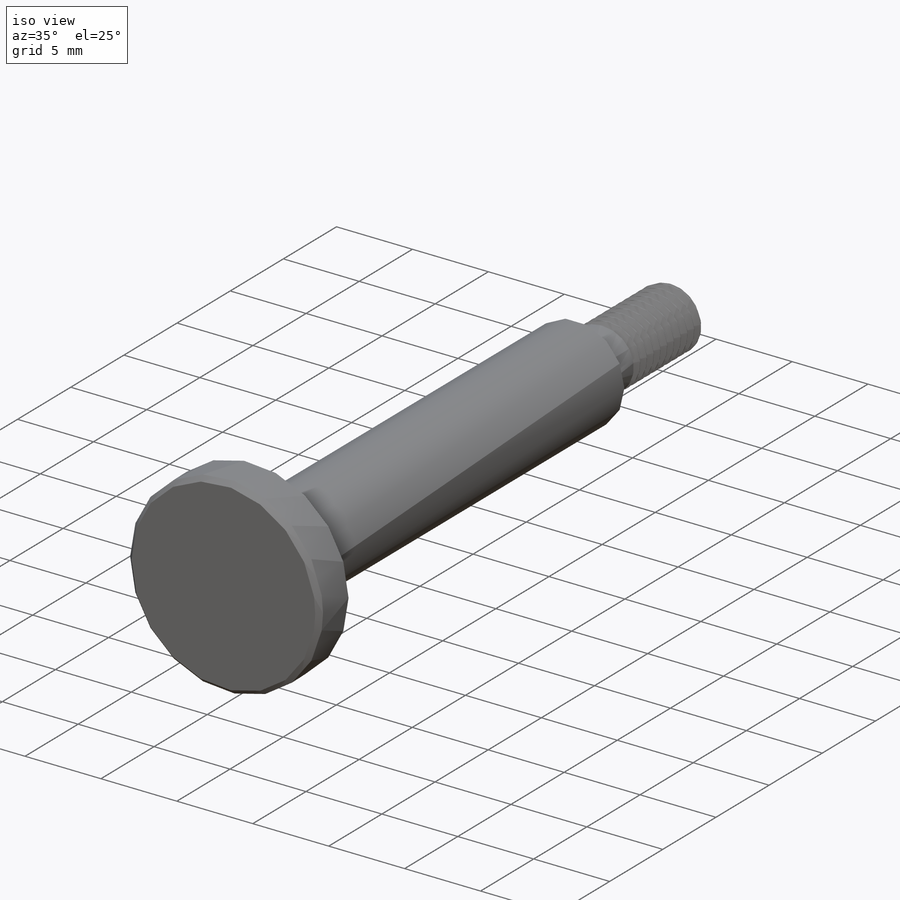
[diagram: iso view]
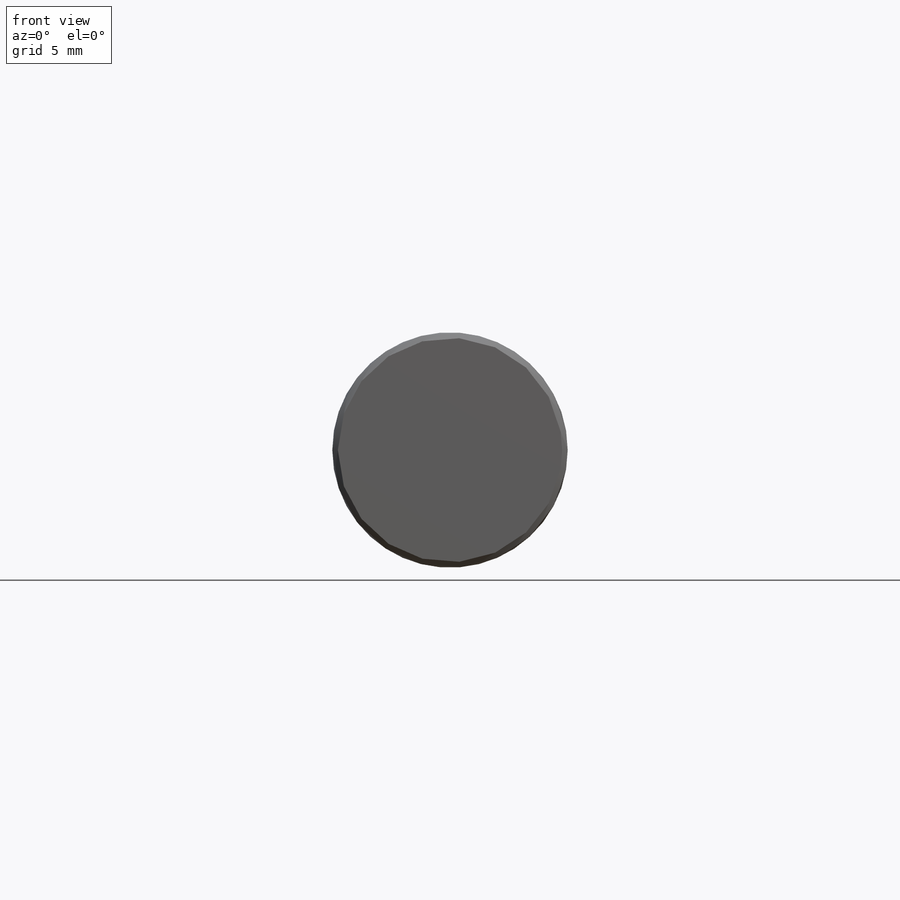
[diagram: front view]
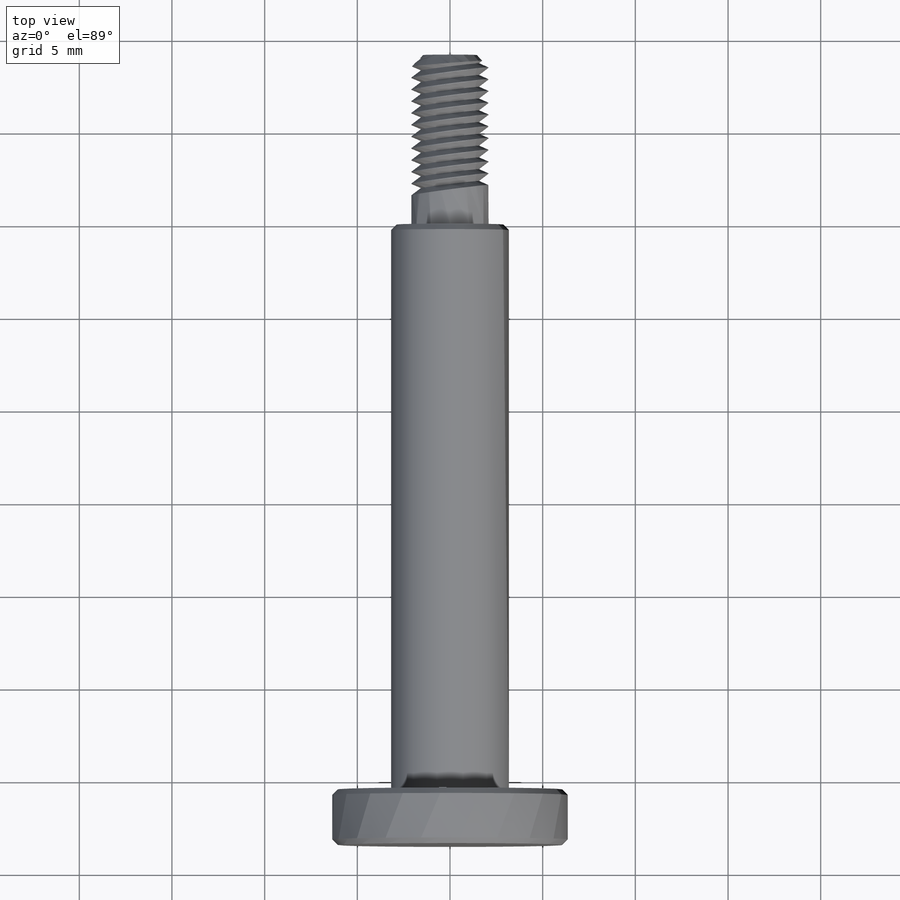
[diagram: top view]
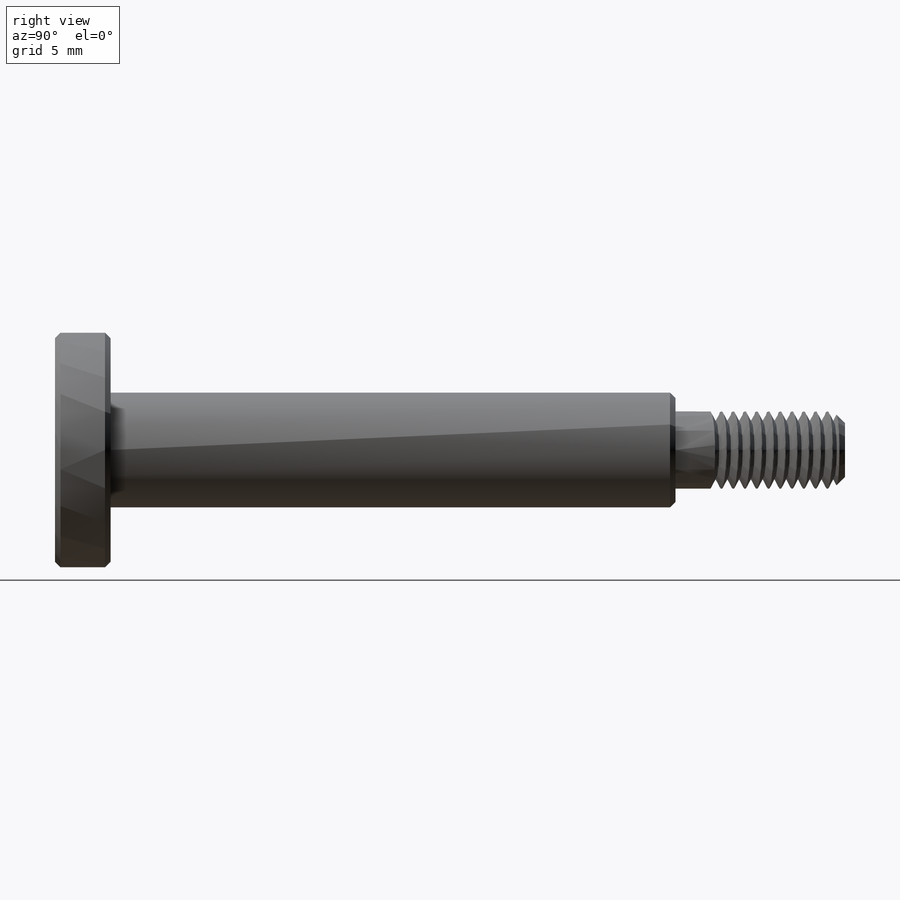
[diagram: right view]
SOLIDWORKS PART (.sldprt)
format: sldprt  version: not decoded by parser v0  size: 438,272 bytes
history: native  units: mm
features: sketch x3, chamfer x3, revolve x2, material x1, cut_revolve x1, pattern_linear x1 (+11 scaffold rows collapsed)
feature tree (22):
  scaffold x11  (default folders/planes/origin — collapsed)
  material  "Material <not specified>"
  sketch  "Sketch1"  dims[D1=6.35mm D2=4.1656mm D3=12.7mm D4=3.0mm D5=~30.478572mm D6=9.144mm]
  revolve  "Revolve1"  Angle=360deg
  sketch  "Sketch2"
  revolve  "Revolve2"  Angle=360deg
  chamfer  "Chamfer1"  Distance=0.3mm Angle=45deg
  chamfer  "Chamfer2"  Distance=0.3mm Angle=45deg
  chamfer  "Chamfer3"  Distance=0.635mm Angle=45deg
  sketch  "Sketch3"  dims[D1=0.635mm]
  cut_revolve  "8-32 sim"  Angle=360deg
  pattern_linear  "LPattern1"  Count1=8 Count2=2 Spacing1=0.635mm Spacing2=2.54mm
decode coverage: 9 of 10 modeling features carry decoded parameters
note: ~ marks probable driven/reference dimensions
note: suppression state not decoded; provenance and decode notes live in map.json
